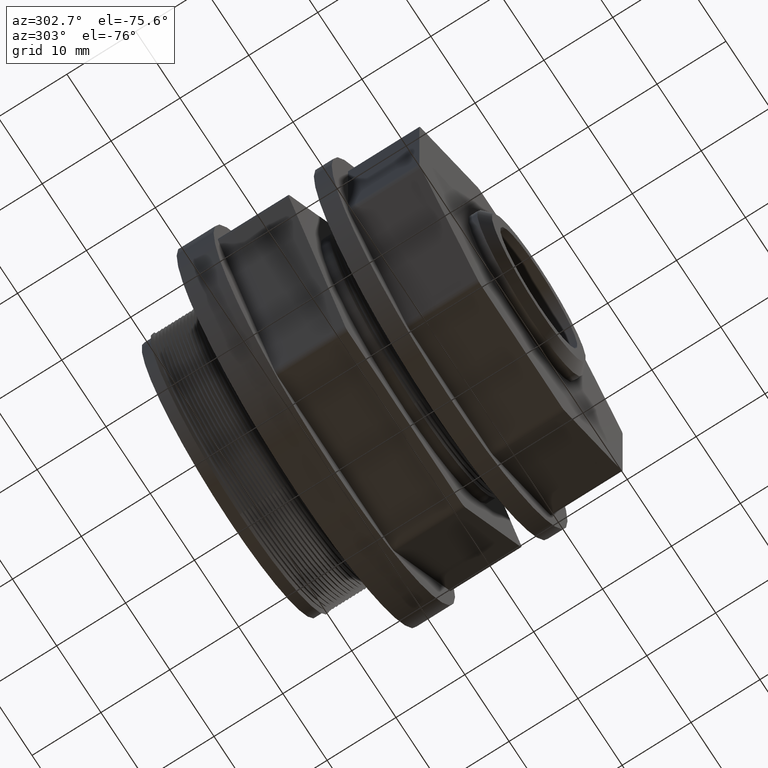
[diagram: clean part render]
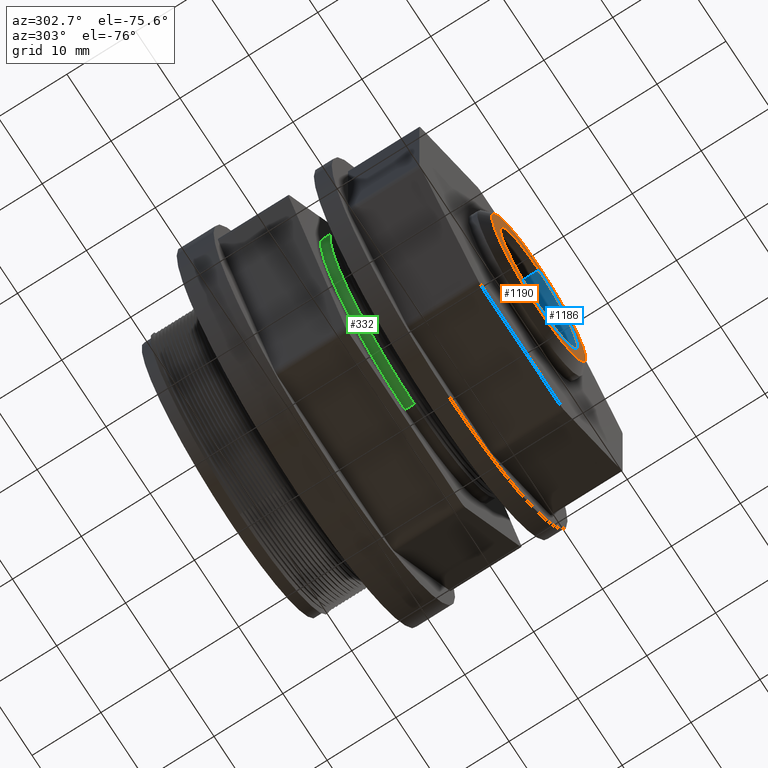
[diagram: same view with three faces highlighted in distinct colors, each labeled with its STEP entity id]
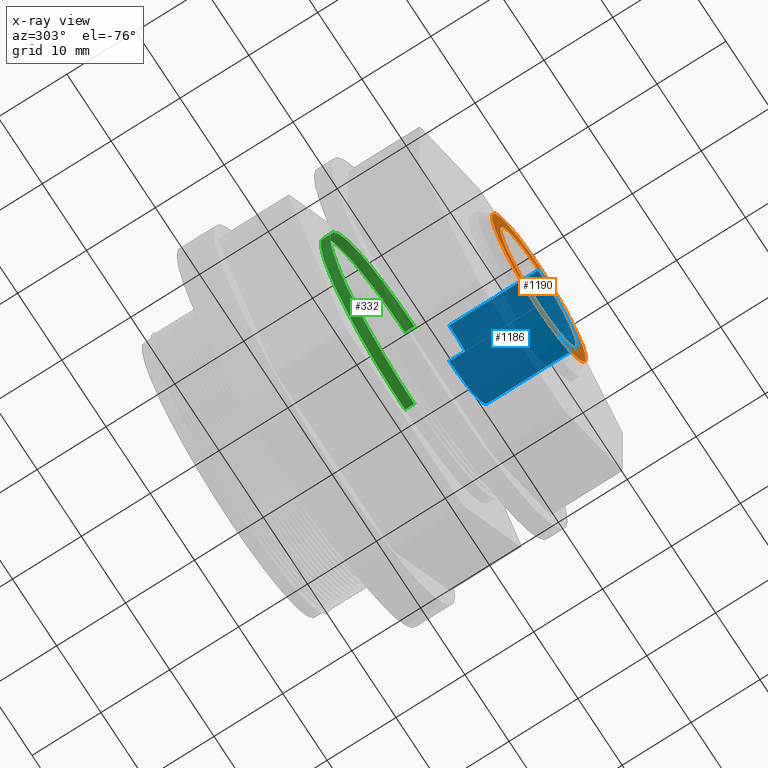
[diagram: x-ray of the same camera — body ghosted, the three highlighted faces saturated]
A machine part, auxiliary view with three faces highlighted in distinct colors.
The next image is the same camera in x-ray (body ghosted, the three faces saturated) — at least one of them is partly hidden behind the body in this view.
Their STEP definitions:

[orange] entity #1190 — the highlighted planar face has unit normal (0, -1, 0).
#992 = EDGE_CURVE ( 'NONE', #1160, #1161, #2297, .T. ) ;
#1104 = EDGE_CURVE ( 'NONE', #1107, #1106, #2486, .T. ) ;
#1106 = VERTEX_POINT ( 'NONE', #2480 ) ;
#1107 = VERTEX_POINT ( 'NONE', #2479 ) ;
#1160 = VERTEX_POINT ( 'NONE', #2595 ) ;
#1161 = VERTEX_POINT ( 'NONE', #2582 ) ;
#1165 = EDGE_CURVE ( 'NONE', #1161, #1160, #2558, .T. ) ;
#1184 = EDGE_CURVE ( 'NONE', #1106, #1107, #2632, .T. ) ;
#1190 = ADVANCED_FACE ( 'NONE', ( #2683, #2655 ), #2654, .T. ) ;
#1191 = EDGE_LOOP ( 'NONE', ( #1192, #1321 ) ) ;
#1192 = ORIENTED_EDGE ( 'NONE', *, *, #1184, .F. ) ;
#1193 = ORIENTED_EDGE ( 'NONE', *, *, #992, .F. ) ;
#1194 = ORIENTED_EDGE ( 'NONE', *, *, #1165, .F. ) ;
#1321 = ORIENTED_EDGE ( 'NONE', *, *, #1104, .F. ) ;
#1322 = EDGE_LOOP ( 'NONE', ( #1193, #1194 ) ) ;
#2297 = CIRCLE ( 'NONE', #2311, 0.4189999999999995400 ) ;
#2308 = DIRECTION ( 'NONE',  ( 0.0000000000000000000, 0.0000000000000000000, 1.000000000000000000 ) ) ;
#2309 = DIRECTION ( 'NONE',  ( -0.0000000000000000000, 1.000000000000000000, -0.0000000000000000000 ) ) ;
#2310 = CARTESIAN_POINT ( 'NONE',  ( 0.0000000000000000000, 0.0000000000000000000, 0.0000000000000000000 ) ) ;
#2311 = AXIS2_PLACEMENT_3D ( 'NONE', #2310, #2309, #2308 ) ;
#2479 = CARTESIAN_POINT ( 'NONE',  ( 4.209723372069026300E-017, 0.0000000000000000000, 0.3437500000000000000 ) ) ;
#2480 = CARTESIAN_POINT ( 'NONE',  ( 0.0000000000000000000, 0.0000000000000000000, -0.3437500000000000000 ) ) ;
#2481 = DIRECTION ( 'NONE',  ( 0.0000000000000000000, 0.0000000000000000000, -1.000000000000000000 ) ) ;
#2483 = DIRECTION ( 'NONE',  ( 0.0000000000000000000, -1.000000000000000000, 0.0000000000000000000 ) ) ;
#2484 = CARTESIAN_POINT ( 'NONE',  ( 0.0000000000000000000, 0.0000000000000000000, 0.0000000000000000000 ) ) ;
#2485 = AXIS2_PLACEMENT_3D ( 'NONE', #2484, #2483, #2481 ) ;
#2486 = CIRCLE ( 'NONE', #2485, 0.3437500000000000000 ) ;
#2542 = DIRECTION ( 'NONE',  ( 0.0000000000000000000, 0.0000000000000000000, 1.000000000000000000 ) ) ;
#2543 = DIRECTION ( 'NONE',  ( -0.0000000000000000000, 1.000000000000000000, -0.0000000000000000000 ) ) ;
#2544 = CARTESIAN_POINT ( 'NONE',  ( 0.0000000000000000000, 0.0000000000000000000, 0.0000000000000000000 ) ) ;
#2557 = AXIS2_PLACEMENT_3D ( 'NONE', #2544, #2543, #2542 ) ;
#2558 = CIRCLE ( 'NONE', #2557, 0.4189999999999995400 ) ;
#2582 = CARTESIAN_POINT ( 'NONE',  ( 5.443555022209981000E-017, 0.0000000000000000000, -0.4189999999999995400 ) ) ;
#2595 = CARTESIAN_POINT ( 'NONE',  ( 0.0000000000000000000, 0.0000000000000000000, 0.4189999999999995400 ) ) ;
#2623 = AXIS2_PLACEMENT_3D ( 'NONE', #2702, #2701, #2700 ) ;
#2632 = CIRCLE ( 'NONE', #2662, 0.3437500000000000000 ) ;
#2651 = DIRECTION ( 'NONE',  ( 0.0000000000000000000, 0.0000000000000000000, -1.000000000000000000 ) ) ;
#2654 = PLANE ( 'NONE',  #2623 ) ;
#2655 = FACE_OUTER_BOUND ( 'NONE', #1322, .T. ) ;
#2662 = AXIS2_PLACEMENT_3D ( 'NONE', #2703, #2681, #2651 ) ;
#2681 = DIRECTION ( 'NONE',  ( 0.0000000000000000000, -1.000000000000000000, 0.0000000000000000000 ) ) ;
#2683 = FACE_BOUND ( 'NONE', #1191, .T. ) ;
#2700 = DIRECTION ( 'NONE',  ( 0.0000000000000000000, -0.0000000000000000000, -1.000000000000000000 ) ) ;
#2701 = DIRECTION ( 'NONE',  ( 0.0000000000000000000, -1.000000000000000000, 0.0000000000000000000 ) ) ;
#2702 = CARTESIAN_POINT ( 'NONE',  ( -0.2749999999999997400, -8.537024980200822600E-018, 0.0000000000000000000 ) ) ;
#2703 = CARTESIAN_POINT ( 'NONE',  ( 0.0000000000000000000, 0.0000000000000000000, 0.0000000000000000000 ) ) ;

[blue] entity #1186 — the highlighted cylindrical surface (partial cylindrical patch) has radius 8.7312 mm, axis along (-0, -1, -0).
#1023 = EDGE_CURVE ( 'NONE', #1100, #1106, #2503, .T. ) ;
#1099 = VERTEX_POINT ( 'NONE', #2418 ) ;
#1100 = VERTEX_POINT ( 'NONE', #2416 ) ;
#1102 = EDGE_CURVE ( 'NONE', #1099, #1107, #2413, .T. ) ;
#1106 = VERTEX_POINT ( 'NONE', #2480 ) ;
#1107 = VERTEX_POINT ( 'NONE', #2479 ) ;
#1184 = EDGE_CURVE ( 'NONE', #1106, #1107, #2632, .T. ) ;
#1186 = ADVANCED_FACE ( 'NONE', ( #2660 ), #2722, .F. ) ;
#1343 = ORIENTED_EDGE ( 'NONE', *, *, #1102, .F. ) ;
#1407 = EDGE_LOOP ( 'NONE', ( #1343, #1505, #1501, #1500 ) ) ;
#1500 = ORIENTED_EDGE ( 'NONE', *, *, #1184, .T. ) ;
#1501 = ORIENTED_EDGE ( 'NONE', *, *, #1023, .T. ) ;
#1505 = ORIENTED_EDGE ( 'NONE', *, *, #1506, .F. ) ;
#1506 = EDGE_CURVE ( 'NONE', #1100, #1099, #2745, .T. ) ;
#2391 = DIRECTION ( 'NONE',  ( -0.0000000000000000000, -1.000000000000000000, -0.0000000000000000000 ) ) ;
#2413 = LINE ( 'NONE', #2492, #2491 ) ;
#2416 = CARTESIAN_POINT ( 'NONE',  ( 0.0000000000000000000, 0.5120000000000000100, -0.3437500000000000000 ) ) ;
#2418 = CARTESIAN_POINT ( 'NONE',  ( 4.209723372069026300E-017, 0.5120000000000000100, 0.3437500000000000000 ) ) ;
#2479 = CARTESIAN_POINT ( 'NONE',  ( 4.209723372069026300E-017, 0.0000000000000000000, 0.3437500000000000000 ) ) ;
#2480 = CARTESIAN_POINT ( 'NONE',  ( 0.0000000000000000000, 0.0000000000000000000, -0.3437500000000000000 ) ) ;
#2490 = DIRECTION ( 'NONE',  ( -0.0000000000000000000, -1.000000000000000000, -0.0000000000000000000 ) ) ;
#2491 = VECTOR ( 'NONE', #2490, 39.37007874015748100 ) ;
#2492 = CARTESIAN_POINT ( 'NONE',  ( 4.209723372069026300E-017, 0.5120000000000000100, 0.3437500000000000000 ) ) ;
#2501 = VECTOR ( 'NONE', #2391, 39.37007874015748100 ) ;
#2502 = CARTESIAN_POINT ( 'NONE',  ( 0.0000000000000000000, 0.5120000000000000100, -0.3437500000000000000 ) ) ;
#2503 = LINE ( 'NONE', #2502, #2501 ) ;
#2632 = CIRCLE ( 'NONE', #2662, 0.3437500000000000000 ) ;
#2648 = DIRECTION ( 'NONE',  ( 0.0000000000000000000, 0.0000000000000000000, -1.000000000000000000 ) ) ;
#2649 = DIRECTION ( 'NONE',  ( -0.0000000000000000000, -1.000000000000000000, -0.0000000000000000000 ) ) ;
#2651 = DIRECTION ( 'NONE',  ( 0.0000000000000000000, 0.0000000000000000000, -1.000000000000000000 ) ) ;
#2660 = FACE_OUTER_BOUND ( 'NONE', #1407, .T. ) ;
#2662 = AXIS2_PLACEMENT_3D ( 'NONE', #2703, #2681, #2651 ) ;
#2681 = DIRECTION ( 'NONE',  ( 0.0000000000000000000, -1.000000000000000000, 0.0000000000000000000 ) ) ;
#2684 = CARTESIAN_POINT ( 'NONE',  ( 0.0000000000000000000, 0.5120000000000000100, 0.0000000000000000000 ) ) ;
#2685 = AXIS2_PLACEMENT_3D ( 'NONE', #2684, #2649, #2648 ) ;
#2703 = CARTESIAN_POINT ( 'NONE',  ( 0.0000000000000000000, 0.0000000000000000000, 0.0000000000000000000 ) ) ;
#2722 = CYLINDRICAL_SURFACE ( 'NONE', #2685, 0.3437500000000000000 ) ;
#2741 = DIRECTION ( 'NONE',  ( 0.0000000000000000000, 0.0000000000000000000, -1.000000000000000000 ) ) ;
#2742 = DIRECTION ( 'NONE',  ( 0.0000000000000000000, -1.000000000000000000, 0.0000000000000000000 ) ) ;
#2743 = CARTESIAN_POINT ( 'NONE',  ( 0.0000000000000000000, 0.5120000000000000100, 0.0000000000000000000 ) ) ;
#2744 = AXIS2_PLACEMENT_3D ( 'NONE', #2743, #2742, #2741 ) ;
#2745 = CIRCLE ( 'NONE', #2744, 0.3437500000000000000 ) ;

[green] entity #332 — the highlighted cylindrical surface (partial cylindrical patch) has radius 19.05 mm, axis along (-0, 1, -0).
#154 = VERTEX_POINT ( 'NONE', #828 ) ;
#157 = VERTEX_POINT ( 'NONE', #822 ) ;
#224 = ORIENTED_EDGE ( 'NONE', *, *, #287, .F. ) ;
#242 = VERTEX_POINT ( 'NONE', #725 ) ;
#255 = VERTEX_POINT ( 'NONE', #1032 ) ;
#257 = EDGE_CURVE ( 'NONE', #157, #255, #1047, .T. ) ;
#287 = EDGE_CURVE ( 'NONE', #154, #242, #1259, .T. ) ;
#305 = EDGE_CURVE ( 'NONE', #242, #255, #1390, .T. ) ;
#313 = EDGE_LOOP ( 'NONE', ( #224, #3140, #3114, #3054 ) ) ;
#332 = ADVANCED_FACE ( 'NONE', ( #1502 ), #1461, .T. ) ;
#725 = CARTESIAN_POINT ( 'NONE',  ( 9.184850993605147200E-017, 0.7650000000000000100, -0.7499999999999998900 ) ) ;
#822 = CARTESIAN_POINT ( 'NONE',  ( 0.0000000000000000000, 0.7120000000000001900, 0.7500000000000001100 ) ) ;
#828 = CARTESIAN_POINT ( 'NONE',  ( 9.184850993605148400E-017, 0.7120000000000001900, -0.7500000000000001100 ) ) ;
#1032 = CARTESIAN_POINT ( 'NONE',  ( 0.0000000000000000000, 0.7650000000000000100, 0.7499999999999998900 ) ) ;
#1042 = DIRECTION ( 'NONE',  ( -0.0000000000000000000, 1.000000000000000000, -0.0000000000000000000 ) ) ;
#1044 = VECTOR ( 'NONE', #1042, 39.37007874015748100 ) ;
#1045 = CARTESIAN_POINT ( 'NONE',  ( 0.0000000000000000000, 1.843561561718224600, 0.7499999999999998900 ) ) ;
#1047 = LINE ( 'NONE', #1045, #1044 ) ;
#1256 = DIRECTION ( 'NONE',  ( -0.0000000000000000000, 1.000000000000000000, -0.0000000000000000000 ) ) ;
#1257 = VECTOR ( 'NONE', #1256, 39.37007874015748100 ) ;
#1258 = CARTESIAN_POINT ( 'NONE',  ( 9.184850993605147200E-017, 1.843561561718224600, -0.7499999999999998900 ) ) ;
#1259 = LINE ( 'NONE', #1258, #1257 ) ;
#1387 = DIRECTION ( 'NONE',  ( 0.0000000000000000000, 0.0000000000000000000, 1.000000000000000000 ) ) ;
#1388 = DIRECTION ( 'NONE',  ( -0.0000000000000000000, 1.000000000000000000, -0.0000000000000000000 ) ) ;
#1390 = CIRCLE ( 'NONE', #1517, 0.7499999999999998900 ) ;
#1455 = DIRECTION ( 'NONE',  ( 0.0000000000000000000, 0.0000000000000000000, 1.000000000000000000 ) ) ;
#1456 = DIRECTION ( 'NONE',  ( -0.0000000000000000000, 1.000000000000000000, -0.0000000000000000000 ) ) ;
#1457 = CARTESIAN_POINT ( 'NONE',  ( 0.0000000000000000000, 1.843561561718224600, 0.0000000000000000000 ) ) ;
#1460 = AXIS2_PLACEMENT_3D ( 'NONE', #1457, #1456, #1455 ) ;
#1461 = CYLINDRICAL_SURFACE ( 'NONE', #1460, 0.7499999999999998900 ) ;
#1502 = FACE_OUTER_BOUND ( 'NONE', #313, .T. ) ;
#1516 = CARTESIAN_POINT ( 'NONE',  ( 0.0000000000000000000, 0.7650000000000000100, 0.0000000000000000000 ) ) ;
#1517 = AXIS2_PLACEMENT_3D ( 'NONE', #1516, #1388, #1387 ) ;
#3047 = EDGE_CURVE ( 'NONE', #154, #157, #3540, .T. ) ;
#3054 = ORIENTED_EDGE ( 'NONE', *, *, #305, .F. ) ;
#3114 = ORIENTED_EDGE ( 'NONE', *, *, #257, .T. ) ;
#3140 = ORIENTED_EDGE ( 'NONE', *, *, #3047, .T. ) ;
#3536 = DIRECTION ( 'NONE',  ( 0.0000000000000000000, 0.0000000000000000000, 1.000000000000000000 ) ) ;
#3537 = DIRECTION ( 'NONE',  ( -0.0000000000000000000, 1.000000000000000000, -0.0000000000000000000 ) ) ;
#3538 = CARTESIAN_POINT ( 'NONE',  ( 0.0000000000000000000, 0.7120000000000001900, 0.0000000000000000000 ) ) ;
#3539 = AXIS2_PLACEMENT_3D ( 'NONE', #3538, #3537, #3536 ) ;
#3540 = CIRCLE ( 'NONE', #3539, 0.7500000000000001100 ) ;